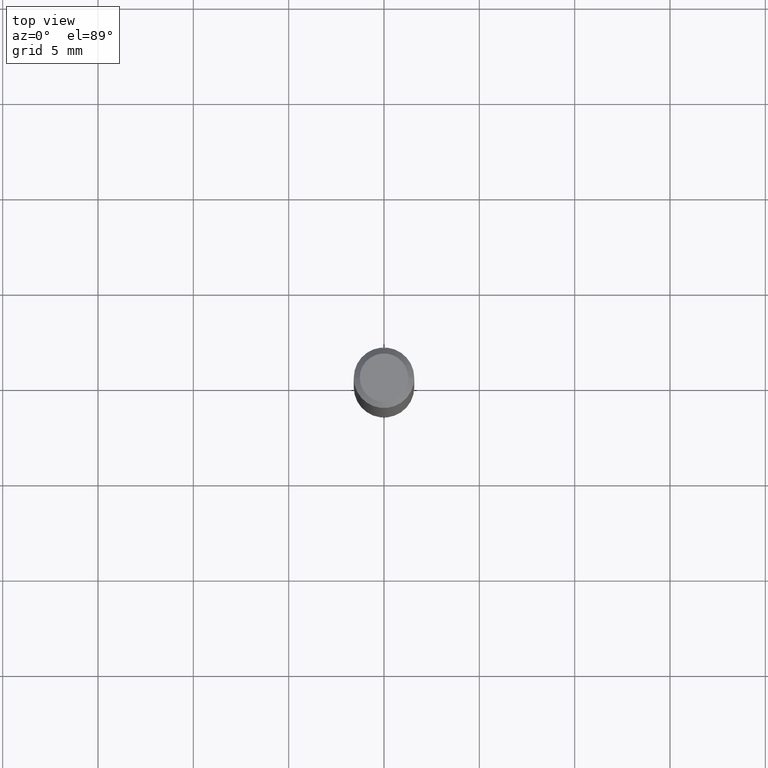
[diagram: clean part render]
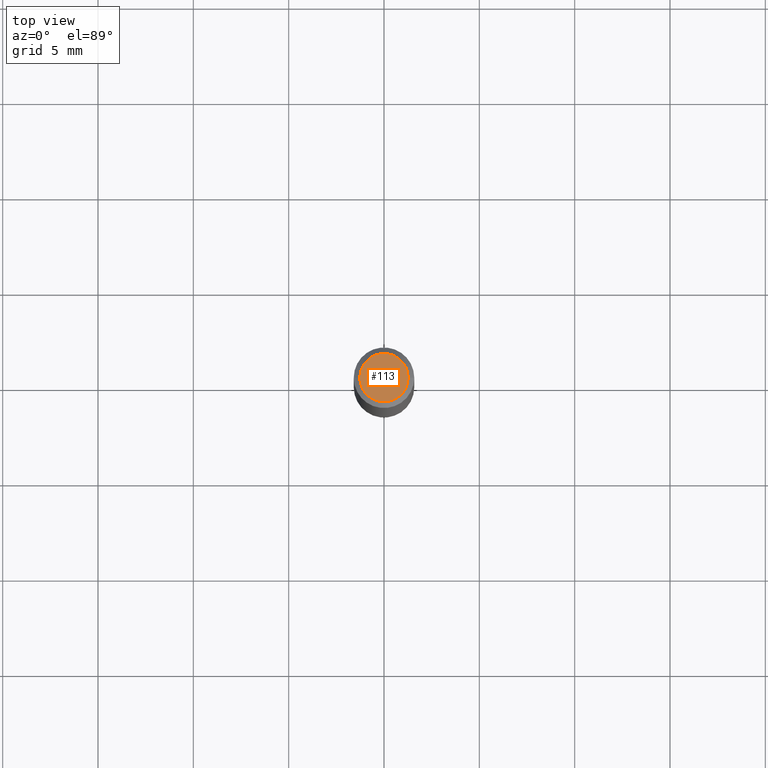
[diagram: same view with one face highlighted and labeled with its STEP entity id]
A machine part, top view. The second image highlights one B-rep face of the part: STEP entity #113.
In plain terms, the highlighted planar face has unit normal (0, -0, -1).
Its self-contained STEP definition (entity closure, byte-faithful):
#23 = PLANE ( 'NONE',  #382 ) ;
#25 = EDGE_CURVE ( 'NONE', #380, #225, #381, .T. ) ;
#36 = DIRECTION ( 'NONE',  ( 1.000000000000000000, -6.982962677686265922E-15, 4.876194921942043128E-29 ) ) ;
#53 = DIRECTION ( 'NONE',  ( -1.000000000000000000, 6.982962677686265922E-15, -4.876176775795935793E-29 ) ) ;
#110 = EDGE_LOOP ( 'NONE', ( #199, #391 ) ) ;
#113 = ADVANCED_FACE ( 'NONE', ( #402 ), #23, .F. ) ;
#183 = DIRECTION ( 'NONE',  ( -2.445468806185136597E-29, 3.491481338843145583E-15, 1.000000000000000000 ) ) ;
#198 = DIRECTION ( 'NONE',  ( 1.000000000000000000, -6.982962677686265922E-15, 4.876194921942043128E-29 ) ) ;
#199 = ORIENTED_EDGE ( 'NONE', *, *, #25, .T. ) ;
#225 = VERTEX_POINT ( 'NONE', #472 ) ;
#276 = AXIS2_PLACEMENT_3D ( 'NONE', #354, #384, #198 ) ;
#334 = EDGE_CURVE ( 'NONE', #225, #380, #468, .T. ) ;
#336 = AXIS2_PLACEMENT_3D ( 'NONE', #377, #183, #36 ) ;
#354 = CARTESIAN_POINT ( 'NONE',  ( -8.265746106709734507E-48, 1.180129479067563789E-33, 3.380025165646692144E-19 ) ) ;
#364 = DIRECTION ( 'NONE',  ( 2.438088387897960049E-29, -3.491481338843145188E-15, -1.000000000000000000 ) ) ;
#377 = CARTESIAN_POINT ( 'NONE',  ( -8.265746106709734507E-48, 1.180129479067563789E-33, 3.380025165646692144E-19 ) ) ;
#380 = VERTEX_POINT ( 'NONE', #478 ) ;
#381 = CIRCLE ( 'NONE', #276, 0.04999999999999999584 ) ;
#382 = AXIS2_PLACEMENT_3D ( 'NONE', #401, #364, #53 ) ;
#384 = DIRECTION ( 'NONE',  ( -2.445468806185136597E-29, 3.491481338843145583E-15, 1.000000000000000000 ) ) ;
#391 = ORIENTED_EDGE ( 'NONE', *, *, #334, .T. ) ;
#401 = CARTESIAN_POINT ( 'NONE',  ( -4.132873053354867254E-48, 5.900647395337818946E-34, 1.690012582823346072E-19 ) ) ;
#402 = FACE_OUTER_BOUND ( 'NONE', #110, .T. ) ;
#468 = CIRCLE ( 'NONE', #336, 0.04999999999999999584 ) ;
#472 = CARTESIAN_POINT ( 'NONE',  ( 0.04999999999999999584, -4.077247707424184212E-16, 3.380025165673154903E-19 ) ) ;
#478 = CARTESIAN_POINT ( 'NONE',  ( -0.04999999999999999584, 3.709698922520826725E-16, 3.380025165621512536E-19 ) ) ;